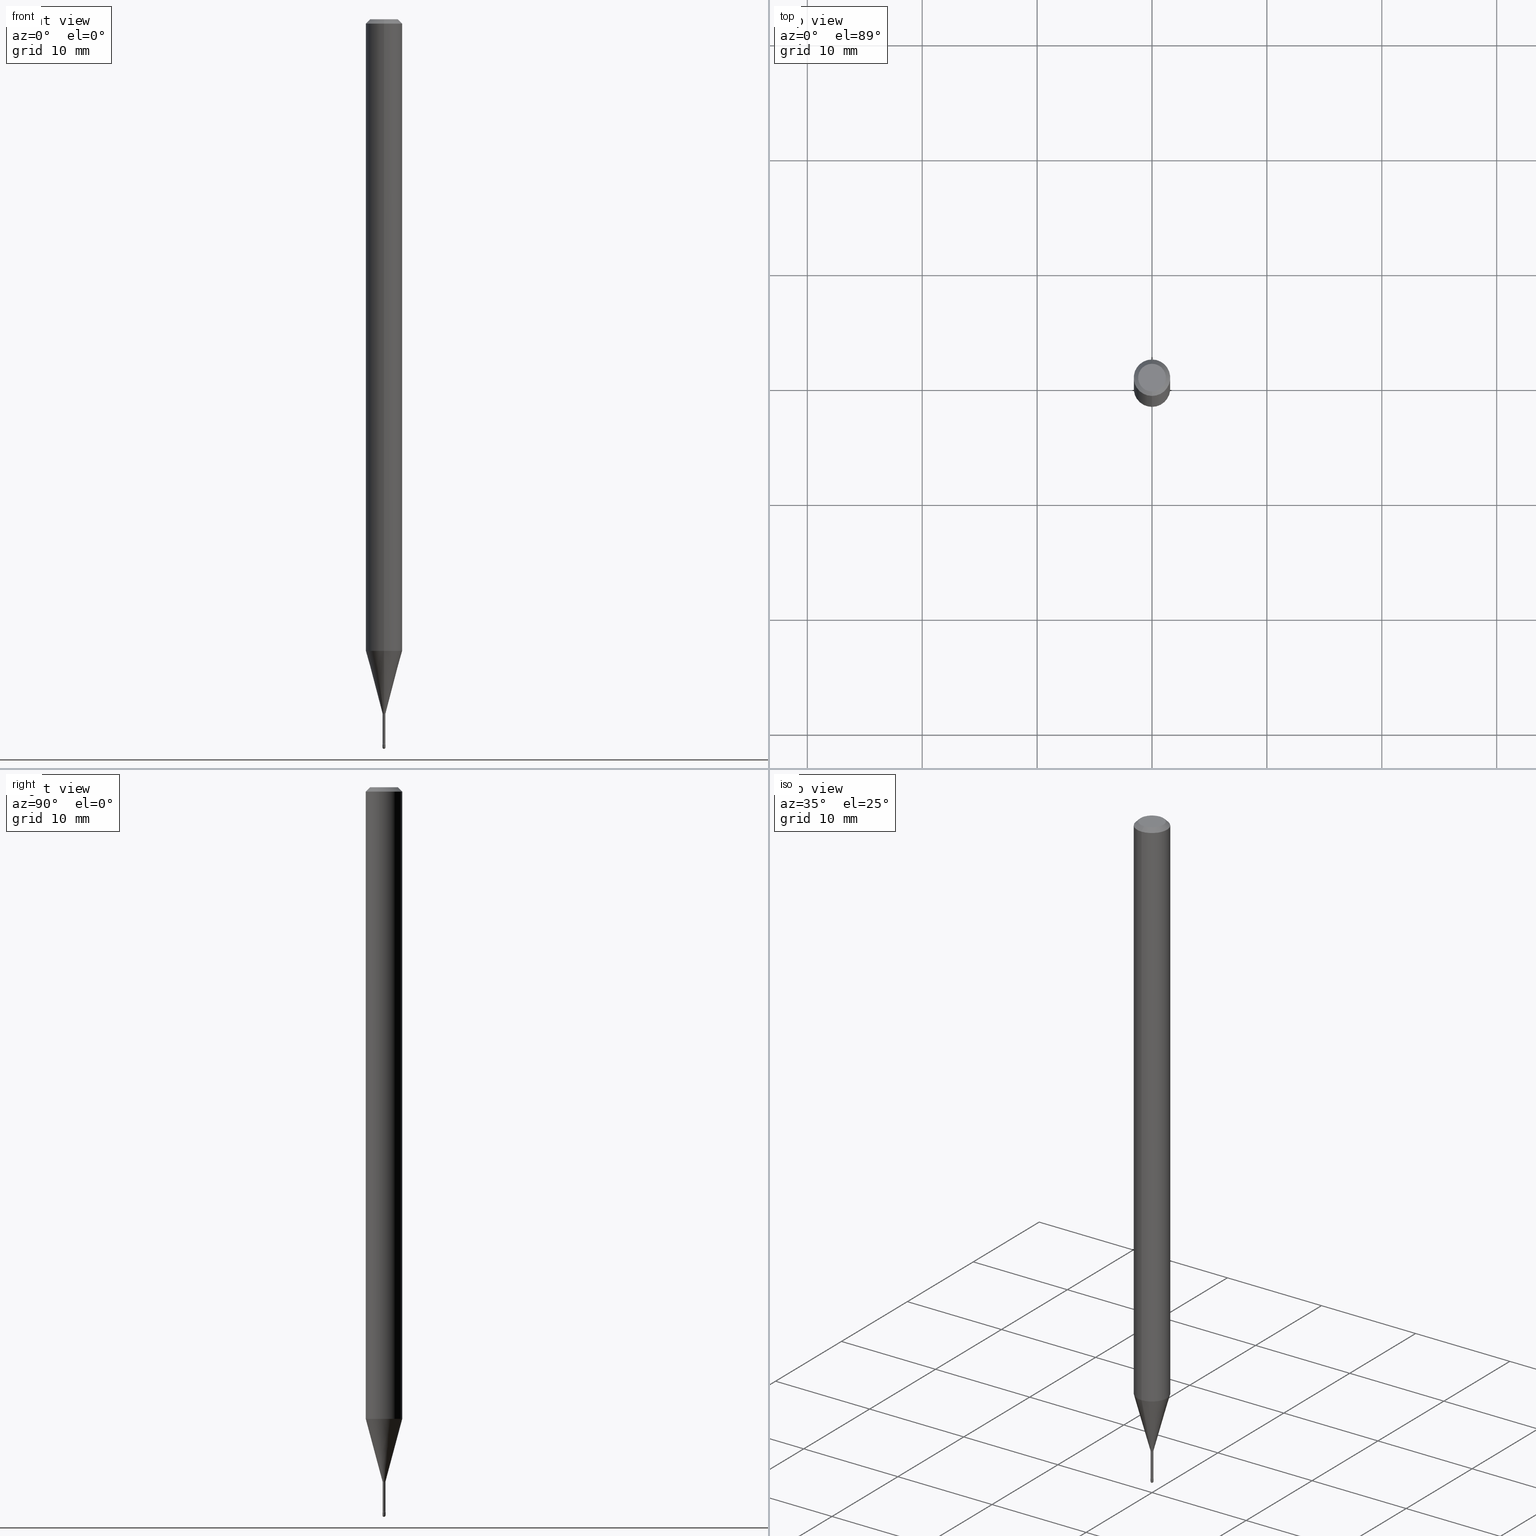
[diagram: canonical four-view strip — front | top / right | iso, engineering-drawing reading convention]
A machine part, canonical four-view strip (front | top / right | iso — engineering-drawing reading convention). The complete STEP part file that produces these views, byte-faithful:
ISO-10303-21;
HEADER;
FILE_DESCRIPTION (( 'STEP AP203' ),
    '1' );
FILE_NAME ('03886.STEP',
    '2024-04-09T20:57:31',
    ( '' ),
    ( '' ),
    'SwSTEP 2.0',
    'SolidWorks 2023',
    '' );
FILE_SCHEMA (( 'CONFIG_CONTROL_DESIGN' ));
ENDSEC;

DATA;
#1 = EDGE_CURVE ( 'NONE', #169, #232, #540, .T. ) ;
#2 = DIRECTION ( 'NONE',  ( -2.446185364487664045E-29, 3.490455186569959815E-15, 1.000000000000000000 ) ) ;
#3 = ORIENTED_EDGE ( 'NONE', *, *, #51, .F. ) ;
#4 = PERSON_AND_ORGANIZATION ( #308, #172 ) ;
#5 = FACE_OUTER_BOUND ( 'NONE', #46, .T. ) ;
#6 = AXIS2_PLACEMENT_3D ( 'NONE', #402, #186, #58 ) ;
#7 = AXIS2_PLACEMENT_3D ( 'NONE', #338, #417, #116 ) ;
#8 = DATE_AND_TIME ( #482, #228 ) ;
#9 = AXIS2_PLACEMENT_3D ( 'NONE', #190, #337, #73 ) ;
#10 = EDGE_CURVE ( 'NONE', #539, #101, #53, .T. ) ;
#11 = DIRECTION ( 'NONE',  ( -6.982962677686266711E-15, -1.000000000000000000, 3.490455186569959815E-15 ) ) ;
#12 = DIRECTION ( 'NONE',  ( -2.438088387897960049E-29, 3.491481338843145188E-15, 1.000000000000000000 ) ) ;
#13 = SECURITY_CLASSIFICATION ( '', '', #565 ) ;
#14 = AXIS2_PLACEMENT_3D ( 'NONE', #100, #359, #220 ) ;
#15 = CIRCLE ( 'NONE', #564, 0.004999999999999995767 ) ;
#16 = ADVANCED_FACE ( 'NONE', ( #369 ), #123, .F. ) ;
#17 = DIRECTION ( 'NONE',  ( -2.446185364487664325E-29, 3.490455186569959815E-15, 1.000000000000000000 ) ) ;
#18 = ORIENTED_EDGE ( 'NONE', *, *, #304, .T. ) ;
#19 = AXIS2_PLACEMENT_3D ( 'NONE', #484, #56, #142 ) ;
#20 = DIRECTION ( 'NONE',  ( 1.000000000000000000, -6.982962677686265922E-15, 4.883557194083112340E-29 ) ) ;
#21 = ORIENTED_EDGE ( 'NONE', *, *, #310, .F. ) ;
#22 = CARTESIAN_POINT ( 'NONE',  ( -1.169113584055446105E-44, 1.669184350826100908E-30, 4.780733988912460139E-16 ) ) ;
#23 = AXIS2_PLACEMENT_3D ( 'NONE', #273, #12, #277 ) ;
#24 = PRODUCT_RELATED_PRODUCT_CATEGORY ( 'detail', '', ( #421 ) ) ;
#25 = DIRECTION ( 'NONE',  ( -2.446185364487664325E-29, 3.490455186569959815E-15, 1.000000000000000000 ) ) ;
#26 = LINE ( 'NONE', #195, #238 ) ;
#27 = EDGE_CURVE ( 'NONE', #343, #169, #549, .T. ) ;
#28 = CIRCLE ( 'NONE', #300, 0.004700000000000001052 ) ;
#29 = ORIENTED_EDGE ( 'NONE', *, *, #504, .T. ) ;
#30 = DIRECTION ( 'NONE',  ( -2.446185364487664325E-29, 3.490455186569959815E-15, 1.000000000000000000 ) ) ;
#31 = DIRECTION ( 'NONE',  ( -6.982962677686265133E-15, -1.000000000000000000, 0.000000000000000000 ) ) ;
#32 = ORIENTED_EDGE ( 'NONE', *, *, #27, .F. ) ;
#33 = CARTESIAN_POINT ( 'NONE',  ( 3.702718207188244706E-17, 0.005211112605655679637, -2.378092501787273605 ) ) ;
#34 = CARTESIAN_POINT ( 'NONE',  ( -0.004999999999999997502, -8.658261396931429042E-15, -2.484999999999999876 ) ) ;
#35 = ORIENTED_EDGE ( 'NONE', *, *, #111, .F. ) ;
#36 = PERSON_AND_ORGANIZATION_ROLE ( 'creator' ) ;
#37 = FACE_OUTER_BOUND ( 'NONE', #78, .T. ) ;
#38 = AXIS2_PLACEMENT_3D ( 'NONE', #294, #167, #467 ) ;
#39 = AXIS2_PLACEMENT_3D ( 'NONE', #286, #243, #425 ) ;
#40 = CIRCLE ( 'NONE', #173, 0.005211112605663980289 ) ;
#41 = VERTEX_POINT ( 'NONE', #507 ) ;
#42 =( NAMED_UNIT ( * ) PLANE_ANGLE_UNIT ( ) SI_UNIT ( $, .RADIAN. ) );
#43 = VERTEX_POINT ( 'NONE', #332 ) ;
#44 = ORIENTED_EDGE ( 'NONE', *, *, #445, .T. ) ;
#45 = PERSON_AND_ORGANIZATION ( #308, #172 ) ;
#46 = EDGE_LOOP ( 'NONE', ( #87, #35, #212, #409 ) ) ;
#47 = ADVANCED_FACE ( 'NONE', ( #496 ), #441, .T. ) ;
#48 = DIRECTION ( 'NONE',  ( -6.982962677686265922E-15, -1.000000000000000000, 4.370956789862821150E-15 ) ) ;
#49 = DIRECTION ( 'NONE',  ( -6.982962677686265133E-15, -1.000000000000000000, 3.490455186569960210E-15 ) ) ;
#50 = DIRECTION ( 'NONE',  ( -2.446185364487664325E-29, 3.490455186569959815E-15, 1.000000000000000000 ) ) ;
#51 = EDGE_CURVE ( 'NONE', #104, #475, #148, .T. ) ;
#52 = LOCAL_TIME ( 16, 57, 31.00000000000000000, #88 ) ;
#53 = CIRCLE ( 'NONE', #39, 0.004999999999999997502 ) ;
#54 = AXIS2_PLACEMENT_3D ( 'NONE', #225, #399, #242 ) ;
#55 = LINE ( 'NONE', #60, #414 ) ;
#56 = DIRECTION ( 'NONE',  ( -2.445468806185136597E-29, 3.491481338843145583E-15, 1.000000000000000000 ) ) ;
#57 = DIRECTION ( 'NONE',  ( -2.446185364487664325E-29, 3.490455186569959815E-15, 1.000000000000000000 ) ) ;
#58 = DIRECTION ( 'NONE',  ( -6.982962677686265922E-15, -1.000000000000000000, 3.490455186569963760E-15 ) ) ;
#59 = LOCAL_TIME ( 16, 57, 31.00000000000000000, #94 ) ;
#60 = CARTESIAN_POINT ( 'NONE',  ( 0.004999999999999997502, -3.491481338843131630E-17, 2.438088387897967108E-31 ) ) ;
#61 = AXIS2_PLACEMENT_3D ( 'NONE', #512, #198, #156 ) ;
#62 = ORIENTED_EDGE ( 'NONE', *, *, #289, .F. ) ;
#63 = CARTESIAN_POINT ( 'NONE',  ( 6.101444671431915719E-29, -8.711245940413648329E-15, -2.495000000000000107 ) ) ;
#64 = ORIENTED_EDGE ( 'NONE', *, *, #244, .T. ) ;
#65 = ORIENTED_EDGE ( 'NONE', *, *, #310, .T. ) ;
#66 = ORIENTED_EDGE ( 'NONE', *, *, #10, .T. ) ;
#67 = CC_DESIGN_PERSON_AND_ORGANIZATION_ASSIGNMENT ( #415, #36, ( #250 ) ) ;
#68 = EDGE_CURVE ( 'NONE', #434, #117, #26, .T. ) ;
#69 = CARTESIAN_POINT ( 'NONE',  ( 5.817255073269882927E-29, -8.300625307006519978E-15, -2.378092501787273605 ) ) ;
#70 = FACE_OUTER_BOUND ( 'NONE', #147, .T. ) ;
#71 = EDGE_CURVE ( 'NONE', #475, #539, #323, .T. ) ;
#72 = CALENDAR_DATE ( 2024, 9, 4 ) ;
#73 = DIRECTION ( 'NONE',  ( -6.982962677686265133E-15, -1.000000000000000000, 0.000000000000000000 ) ) ;
#74 = AXIS2_PLACEMENT_3D ( 'NONE', #462, #537, #77 ) ;
#75 = DIRECTION ( 'NONE',  ( -6.982962677686265922E-15, -1.000000000000000000, 0.000000000000000000 ) ) ;
#76 = DIRECTION ( 'NONE',  ( 2.446185364487664325E-29, -3.490455186569959815E-15, -1.000000000000000000 ) ) ;
#77 = DIRECTION ( 'NONE',  ( -6.982962677686265922E-15, -1.000000000000000000, 0.000000000000000000 ) ) ;
#78 = EDGE_LOOP ( 'NONE', ( #493, #89 ) ) ;
#79 =( LENGTH_UNIT ( ) NAMED_UNIT ( * ) SI_UNIT ( $, .METRE. ) );
#80 = EDGE_CURVE ( 'NONE', #345, #169, #479, .T. ) ;
#81 = DIRECTION ( 'NONE',  ( -2.446185364487664325E-29, 3.490455186569959815E-15, 1.000000000000000000 ) ) ;
#82 = ORIENTED_EDGE ( 'NONE', *, *, #91, .T. ) ;
#83 = LINE ( 'NONE', #33, #562 ) ;
#84 = AXIS2_PLACEMENT_3D ( 'NONE', #544, #153, #122 ) ;
#85 = ORIENTED_EDGE ( 'NONE', *, *, #127, .T. ) ;
#86 = AXIS2_PLACEMENT_3D ( 'NONE', #131, #214, #527 ) ;
#87 = ORIENTED_EDGE ( 'NONE', *, *, #304, .F. ) ;
#88 = COORDINATED_UNIVERSAL_TIME_OFFSET ( 5, 0, .BEHIND. ) ;
#89 = ORIENTED_EDGE ( 'NONE', *, *, #364, .F. ) ;
#90 = PERSON_AND_ORGANIZATION_ROLE ( 'design_supplier' ) ;
#91 = EDGE_CURVE ( 'NONE', #464, #274, #218, .T. ) ;
#92 = AXIS2_PLACEMENT_3D ( 'NONE', #439, #483, #49 ) ;
#93 = DIRECTION ( 'NONE',  ( -2.446185364487664325E-29, 3.490455186569959815E-15, 1.000000000000000000 ) ) ;
#94 = COORDINATED_UNIVERSAL_TIME_OFFSET ( 5, 0, .BEHIND. ) ;
#95 = DIRECTION ( 'NONE',  ( -6.982962677686265133E-15, -1.000000000000000000, 0.000000000000000000 ) ) ;
#96 = EDGE_CURVE ( 'NONE', #203, #345, #383, .T. ) ;
#97 = DIRECTION ( 'NONE',  ( -6.982962677686266711E-15, -1.000000000000000000, 3.490455186569959815E-15 ) ) ;
#98 =( GEOMETRIC_REPRESENTATION_CONTEXT ( 3 ) GLOBAL_UNCERTAINTY_ASSIGNED_CONTEXT ( ( #107 ) ) GLOBAL_UNIT_ASSIGNED_CONTEXT ( ( #298, #42, #547 ) ) REPRESENTATION_CONTEXT ( 'NONE', 'WORKASPACE' ) );
#99 = DIRECTION ( 'NONE',  ( 6.982962677686265922E-15, 1.000000000000000000, 0.000000000000000000 ) ) ;
#100 = CARTESIAN_POINT ( 'NONE',  ( 3.669278046731516912E-31, -5.235682779854968492E-17, -0.01500000000000008271 ) ) ;
#101 = VERTEX_POINT ( 'NONE', #446 ) ;
#102 = DESIGN_CONTEXT ( 'detailed design', #185, 'design' ) ;
#103 = CIRCLE ( 'NONE', #523, 0.01500000000000000638 ) ;
#104 = VERTEX_POINT ( 'NONE', #264 ) ;
#105 = CARTESIAN_POINT ( 'NONE',  ( 6.101444671431915719E-29, -8.711245940413648329E-15, -2.495000000000000107 ) ) ;
#106 = DIRECTION ( 'NONE',  ( -6.982962677686265922E-15, -1.000000000000000000, 3.490455186569963760E-15 ) ) ;
#107 = UNCERTAINTY_MEASURE_WITH_UNIT (LENGTH_MEASURE( 1.000000000000000082E-05 ), #298, 'distance_accuracy_value', 'NONE');
#108 = CYLINDRICAL_SURFACE ( 'NONE', #397, 0.004700000000000003654 ) ;
#109 = CARTESIAN_POINT ( 'NONE',  ( -3.638900483451383026E-17, -0.005211112605672280074, -2.378092501787273605 ) ) ;
#110 = CARTESIAN_POINT ( 'NONE',  ( 5.826751863672590158E-29, -8.314176251181938091E-15, -2.381974787463811527 ) ) ;
#111 = EDGE_CURVE ( 'NONE', #283, #343, #313, .T. ) ;
#112 = ORIENTED_EDGE ( 'NONE', *, *, #199, .T. ) ;
#113 = FACE_OUTER_BOUND ( 'NONE', #431, .T. ) ;
#114 = PERSON_AND_ORGANIZATION ( #308, #172 ) ;
#115 = CC_DESIGN_DATE_AND_TIME_ASSIGNMENT ( #8, #175, ( #13 ) ) ;
#116 = DIRECTION ( 'NONE',  ( -6.982962677686266711E-15, -1.000000000000000000, 3.490455186569959815E-15 ) ) ;
#117 = VERTEX_POINT ( 'NONE', #261 ) ;
#118 = VERTEX_POINT ( 'NONE', #449 ) ;
#119 = COORDINATED_UNIVERSAL_TIME_OFFSET ( 5, 0, .BEHIND. ) ;
#120 = ORIENTED_EDGE ( 'NONE', *, *, #68, .F. ) ;
#121 = ORIENTED_EDGE ( 'NONE', *, *, #400, .T. ) ;
#122 = DIRECTION ( 'NONE',  ( 1.000000000000000000, -6.982962677686142071E-15, 0.000000000000000000 ) ) ;
#123 = TOROIDAL_SURFACE ( 'NONE', #7, 0.01970000000000000917, 0.01500000000000000638 ) ;
#124 = ORIENTED_EDGE ( 'NONE', *, *, #1, .T. ) ;
#125 = AXIS2_PLACEMENT_3D ( 'NONE', #505, #17, #187 ) ;
#126 = DIRECTION ( 'NONE',  ( -2.445468806185136597E-29, 3.491481338843145583E-15, 1.000000000000000000 ) ) ;
#127 = EDGE_CURVE ( 'NONE', #434, #293, #217, .T. ) ;
#128 = PRODUCT_DEFINITION ( 'UNKNOWN', '', #250, #102 ) ;
#129 = FACE_OUTER_BOUND ( 'NONE', #459, .T. ) ;
#130 = LOCAL_TIME ( 16, 57, 31.00000000000000000, #119 ) ;
#131 = CARTESIAN_POINT ( 'NONE',  ( 6.072671037490854444E-29, -8.661640674327993008E-15, -2.482015037688680259 ) ) ;
#132 = DIMENSIONAL_EXPONENTS ( 1.000000000000000000, 0.000000000000000000, 0.000000000000000000, 0.000000000000000000, 0.000000000000000000, 0.000000000000000000, 0.000000000000000000 ) ;
#133 = TOROIDAL_SURFACE ( 'NONE', #324, 0.01970000000000000223, 0.01500000000000002720 ) ;
#134 = FACE_OUTER_BOUND ( 'NONE', #143, .T. ) ;
#135 = CARTESIAN_POINT ( 'NONE',  ( 3.669278046731516912E-31, -5.235682779854968492E-17, -0.01500000000000008271 ) ) ;
#136 = CIRCLE ( 'NONE', #226, 0.06250000000000000000 ) ;
#137 = EDGE_LOOP ( 'NONE', ( #32, #188, #290, #456 ) ) ;
#138 = DIRECTION ( 'NONE',  ( 1.000000000000000000, -6.982962677686336130E-15, 0.000000000000000000 ) ) ;
#139 = CC_DESIGN_PERSON_AND_ORGANIZATION_ASSIGNMENT ( #114, #506, ( #128 ) ) ;
#140 = ADVANCED_FACE ( 'NONE', ( #141 ), #363, .T. ) ;
#141 = FACE_OUTER_BOUND ( 'NONE', #280, .T. ) ;
#142 = DIRECTION ( 'NONE',  ( 1.000000000000000000, -6.982962677686266711E-15, 4.876176775795936914E-29 ) ) ;
#143 = EDGE_LOOP ( 'NONE', ( #201, #85 ) ) ;
#144 = DIRECTION ( 'NONE',  ( -1.000000000000000000, 6.982962677686265922E-15, -4.883557194083112340E-29 ) ) ;
#145 = AXIS2_PLACEMENT_3D ( 'NONE', #566, #174, #478 ) ;
#146 = CARTESIAN_POINT ( 'NONE',  ( 6.101444671431915719E-29, -8.711245940413648329E-15, -2.495000000000000107 ) ) ;
#147 = EDGE_LOOP ( 'NONE', ( #3, #210, #288, #335 ) ) ;
#148 = CIRCLE ( 'NONE', #355, 0.005000000000000040870 ) ;
#149 = APPROVAL ( #341, 'UNSPECIFIED' ) ;
#150 = CIRCLE ( 'NONE', #490, 0.004999999999999995767 ) ;
#151 = CARTESIAN_POINT ( 'NONE',  ( 4.364351673553919652E-16, 0.06249999999999995143, -0.01500000000000030129 ) ) ;
#152 = ORIENTED_EDGE ( 'NONE', *, *, #400, .F. ) ;
#153 = DIRECTION ( 'NONE',  ( -2.445468806185136597E-29, 3.491481338843145583E-15, 1.000000000000000000 ) ) ;
#154 = PRODUCT_DEFINITION_SHAPE ( 'NONE', 'NONE',  #128 ) ;
#155 = MECHANICAL_CONTEXT ( 'NONE', #407, 'mechanical' ) ;
#156 = DIRECTION ( 'NONE',  ( -6.982962677686265922E-15, -1.000000000000000000, 0.000000000000000000 ) ) ;
#157 = CARTESIAN_POINT ( 'NONE',  ( 3.339550858072472854E-17, 0.004700000000000003654, 4.616682595143672511E-16 ) ) ;
#158 = ORIENTED_EDGE ( 'NONE', *, *, #381, .F. ) ;
#159 = DIRECTION ( 'NONE',  ( 0.000000000000000000, 0.000000000000000000, 1.000000000000000000 ) ) ;
#160 = CLOSED_SHELL ( 'NONE', ( #252, #403, #488, #140, #473 ) ) ;
#161 = VECTOR ( 'NONE', #292, 39.37007874015748143 ) ;
#162 = DIRECTION ( 'NONE',  ( -2.446185364487664325E-29, 3.490455186569959815E-15, 1.000000000000000000 ) ) ;
#163 = ORIENTED_EDGE ( 'NONE', *, *, #111, .T. ) ;
#164 = CARTESIAN_POINT ( 'NONE',  ( 3.669278046731516912E-31, -5.235682779854968492E-17, -0.01500000000000008271 ) ) ;
#165 = ORIENTED_EDGE ( 'NONE', *, *, #127, .F. ) ;
#166 = ORIENTED_EDGE ( 'NONE', *, *, #189, .F. ) ;
#167 = DIRECTION ( 'NONE',  ( -2.445468806185136597E-29, 3.491481338843145583E-15, 1.000000000000000000 ) ) ;
#168 = ADVANCED_FACE ( 'NONE', ( #270 ), #258, .T. ) ;
#169 = VERTEX_POINT ( 'NONE', #179 ) ;
#170 = ADVANCED_FACE ( 'NONE', ( #307 ), #508, .F. ) ;
#171 = DIRECTION ( 'NONE',  ( 7.105427357601001859E-15, 1.000000000000000000, 0.000000000000000000 ) ) ;
#172 = ORGANIZATION ( 'UNSPECIFIED', 'UNSPECIFIED', '' ) ;
#173 = AXIS2_PLACEMENT_3D ( 'NONE', #69, #239, #287 ) ;
#174 = DIRECTION ( 'NONE',  ( -2.446185364487664325E-29, 3.490455186569959815E-15, 1.000000000000000000 ) ) ;
#175 = DATE_TIME_ROLE ( 'classification_date' ) ;
#176 = CARTESIAN_POINT ( 'NONE',  ( 5.817255073269882927E-29, -8.300625307006519978E-15, -2.378092501787273605 ) ) ;
#177 = FACE_OUTER_BOUND ( 'NONE', #231, .T. ) ;
#178 = PERSON_AND_ORGANIZATION ( #308, #172 ) ;
#179 = CARTESIAN_POINT ( 'NONE',  ( 3.339550858078545234E-17, 0.004699999999991687390, -2.381974787463811527 ) ) ;
#180 = AXIS2_PLACEMENT_3D ( 'NONE', #135, #309, #440 ) ;
#181 = ADVANCED_FACE ( 'NONE', ( #134 ), #222, .F. ) ;
#182 = CARTESIAN_POINT ( 'NONE',  ( -4.364351673553916201E-16, -0.06250000000000000000, 6.962268480518685024E-16 ) ) ;
#183 = AXIS2_PLACEMENT_3D ( 'NONE', #398, #57, #11 ) ;
#184 = VECTOR ( 'NONE', #2, 39.37007874015748143 ) ;
#185 = APPLICATION_CONTEXT ( 'configuration controlled 3d designs of mechanical parts and assemblies' ) ;
#186 = DIRECTION ( 'NONE',  ( -2.446185364487664325E-29, 3.490455186569959815E-15, 1.000000000000000000 ) ) ;
#187 = DIRECTION ( 'NONE',  ( -6.982962677686265922E-15, -1.000000000000000000, 4.370956789862821150E-15 ) ) ;
#188 = ORIENTED_EDGE ( 'NONE', *, *, #315, .T. ) ;
#189 = EDGE_CURVE ( 'NONE', #117, #274, #404, .T. ) ;
#190 = CARTESIAN_POINT ( 'NONE',  ( -1.375643647503587926E-16, -0.01970000000000867238, -2.482015037688680259 ) ) ;
#191 = ORIENTED_EDGE ( 'NONE', *, *, #27, .T. ) ;
#192 = CARTESIAN_POINT ( 'NONE',  ( -3.281992458506719177E-17, -0.004700000000008315582, -2.381974787463811527 ) ) ;
#193 = AXIS2_PLACEMENT_3D ( 'NONE', #22, #30, #230 ) ;
#194 = MANIFOLD_SOLID_BREP ( 'Body-Move/Copy2[2]', #525 ) ;
#195 = CARTESIAN_POINT ( 'NONE',  ( -4.287811248607203282E-16, -0.06250000000000005551, -0.01499999999999986587 ) ) ;
#196 = ORIENTED_EDGE ( 'NONE', *, *, #530, .T. ) ;
#197 = CARTESIAN_POINT ( 'NONE',  ( 3.552713678806574616E-17, 0.004999999999991322150, -2.484999999999999876 ) ) ;
#198 = DIRECTION ( 'NONE',  ( -2.446185364487664325E-29, 3.490455186569959815E-15, 1.000000000000000000 ) ) ;
#199 = EDGE_CURVE ( 'NONE', #43, #118, #55, .T. ) ;
#200 = MANIFOLD_SOLID_BREP ( 'Body-Move/Copy2[1]', #160 ) ;
#201 = ORIENTED_EDGE ( 'NONE', *, *, #284, .T. ) ;
#202 = DIRECTION ( 'NONE',  ( -2.445468806185136877E-29, 3.491481338843145188E-15, 1.000000000000000000 ) ) ;
#203 = VERTEX_POINT ( 'NONE', #373 ) ;
#204 = ORIENTED_EDGE ( 'NONE', *, *, #381, .T. ) ;
#205 = DIRECTION ( 'NONE',  ( 6.982962677686265922E-15, 1.000000000000000000, -3.483106191921935554E-15 ) ) ;
#206 = TOROIDAL_SURFACE ( 'NONE', #86, 0.01970000000000000917, 0.01500000000000000638 ) ;
#207 = DIRECTION ( 'NONE',  ( -2.446185364487664045E-29, 3.490455186569959815E-15, 1.000000000000000000 ) ) ;
#208 = ORIENTED_EDGE ( 'NONE', *, *, #435, .T. ) ;
#209 = PERSON_AND_ORGANIZATION ( #308, #172 ) ;
#210 = ORIENTED_EDGE ( 'NONE', *, *, #211, .T. ) ;
#211 = EDGE_CURVE ( 'NONE', #104, #101, #259, .T. ) ;
#212 = ORIENTED_EDGE ( 'NONE', *, *, #358, .T. ) ;
#213 = ORIENTED_EDGE ( 'NONE', *, *, #80, .F. ) ;
#214 = DIRECTION ( 'NONE',  ( -2.446185364487664325E-29, 3.490455186569959815E-15, 1.000000000000000000 ) ) ;
#215 = EDGE_CURVE ( 'NONE', #345, #203, #40, .T. ) ;
#216 = CARTESIAN_POINT ( 'NONE',  ( 1.399769189447980049E-16, 0.01969999999999168944, -2.381974787463811527 ) ) ;
#217 = CIRCLE ( 'NONE', #183, 0.04749999999999999362 ) ;
#218 = LINE ( 'NONE', #393, #184 ) ;
#219 = EDGE_CURVE ( 'NONE', #203, #232, #498, .T. ) ;
#220 = DIRECTION ( 'NONE',  ( 6.982962677686265922E-15, 1.000000000000000000, -3.483106191921935554E-15 ) ) ;
#221 = DIRECTION ( 'NONE',  ( -2.446185364487664325E-29, 3.490455186569959815E-15, 1.000000000000000000 ) ) ;
#222 = PLANE ( 'NONE',  #333 ) ;
#223 = AXIS2_PLACEMENT_3D ( 'NONE', #536, #319, #494 ) ;
#224 = ADVANCED_FACE ( 'NONE', ( #113 ), #329, .T. ) ;
#225 = CARTESIAN_POINT ( 'NONE',  ( 6.101444671431917961E-29, -8.711245940413649907E-15, -2.495000000000000551 ) ) ;
#226 = AXIS2_PLACEMENT_3D ( 'NONE', #303, #93, #48 ) ;
#227 = CYLINDRICAL_SURFACE ( 'NONE', #6, 0.004700000000000003654 ) ;
#228 = LOCAL_TIME ( 16, 57, 31.00000000000000000, #437 ) ;
#229 = CIRCLE ( 'NONE', #125, 0.06250000000000000000 ) ;
#230 = DIRECTION ( 'NONE',  ( -6.982962677686265922E-15, -1.000000000000000000, 3.490455186569959421E-15 ) ) ;
#231 = EDGE_LOOP ( 'NONE', ( #158, #66, #342, #112, #62 ) ) ;
#232 = VERTEX_POINT ( 'NONE', #192 ) ;
#233 = EDGE_CURVE ( 'NONE', #41, #464, #229, .T. ) ;
#234 = EDGE_LOOP ( 'NONE', ( #406, #388, #208, #340 ) ) ;
#235 = CIRCLE ( 'NONE', #317, 0.004999999999999997502 ) ;
#236 = DIRECTION ( 'NONE',  ( 6.982962677686265133E-15, 1.000000000000000000, 0.000000000000000000 ) ) ;
#237 = AXIS2_PLACEMENT_3D ( 'NONE', #387, #159, #336 ) ;
#238 = VECTOR ( 'NONE', #371, 39.37007874015748143 ) ;
#239 = DIRECTION ( 'NONE',  ( -2.446185364487664325E-29, 3.490455186569959815E-15, 1.000000000000000000 ) ) ;
#240 = CIRCLE ( 'NONE', #54, 0.004999999999999997502 ) ;
#241 = DATE_AND_TIME ( #72, #130 ) ;
#242 = DIRECTION ( 'NONE',  ( 1.000000000000000000, -6.982962677686142071E-15, 0.000000000000000000 ) ) ;
#243 = DIRECTION ( 'NONE',  ( -2.445468806185136597E-29, 3.491481338843145583E-15, 1.000000000000000000 ) ) ;
#244 = EDGE_CURVE ( 'NONE', #232, #169, #28, .T. ) ;
#245 = FACE_OUTER_BOUND ( 'NONE', #517, .T. ) ;
#246 = FACE_OUTER_BOUND ( 'NONE', #471, .T. ) ;
#247 = ORIENTED_EDGE ( 'NONE', *, *, #96, .T. ) ;
#248 = APPROVAL_DATE_TIME ( #241, #350 ) ;
#249 = ORIENTED_EDGE ( 'NONE', *, *, #219, .T. ) ;
#250 = PRODUCT_DEFINITION_FORMATION_WITH_SPECIFIED_SOURCE ( 'ANY', '', #421, .NOT_KNOWN. ) ;
#251 = AXIS2_PLACEMENT_3D ( 'NONE', #408, #81, #541 ) ;
#252 = ADVANCED_FACE ( 'NONE', ( #245 ), #365, .T. ) ;
#253 = ORIENTED_EDGE ( 'NONE', *, *, #312, .F. ) ;
#254 = ORIENTED_EDGE ( 'NONE', *, *, #233, .T. ) ;
#255 = DATE_AND_TIME ( #291, #52 ) ;
#256 = ORIENTED_EDGE ( 'NONE', *, *, #199, .F. ) ;
#257 = APPROVAL_DATE_TIME ( #476, #545 ) ;
#258 = CONICAL_SURFACE ( 'NONE', #14, 0.06250000000000000000, 0.7853981633974483900 ) ;
#259 = CIRCLE ( 'NONE', #481, 0.005000000000000040870 ) ;
#260 = PERSON_AND_ORGANIZATION_ROLE ( 'classification_officer' ) ;
#261 = CARTESIAN_POINT ( 'NONE',  ( -4.364351673553912750E-16, -0.06250000000000005551, -0.01499999999999986587 ) ) ;
#262 = EDGE_CURVE ( 'NONE', #376, #510, #150, .T. ) ;
#263 = CALENDAR_DATE ( 2024, 9, 4 ) ;
#264 = CARTESIAN_POINT ( 'NONE',  ( 6.113885807035136759E-29, -8.728397185408077852E-15, -2.500000000000000000 ) ) ;
#265 = AXIS2_PLACEMENT_3D ( 'NONE', #164, #76, #205 ) ;
#266 = DIRECTION ( 'NONE',  ( 1.000000000000000000, -7.105427357601001070E-15, 4.926302941801113917E-29 ) ) ;
#267 = AXIS2_PLACEMENT_3D ( 'NONE', #533, #269, #443 ) ;
#268 = CONICAL_SURFACE ( 'NONE', #61, 0.005211112605663980289, 0.2617993877991496854 ) ;
#269 = DIRECTION ( 'NONE',  ( -2.446185364487664325E-29, 3.490455186569959815E-15, 1.000000000000000000 ) ) ;
#270 = FACE_OUTER_BOUND ( 'NONE', #454, .T. ) ;
#271 = FACE_OUTER_BOUND ( 'NONE', #137, .T. ) ;
#272 = CC_DESIGN_PERSON_AND_ORGANIZATION_ASSIGNMENT ( #519, #285, ( #421 ) ) ;
#273 = CARTESIAN_POINT ( 'NONE',  ( 6.076989983370064174E-29, -8.676331127025216680E-15, -2.484999999999999876 ) ) ;
#274 = VERTEX_POINT ( 'NONE', #438 ) ;
#275 = CC_DESIGN_DATE_AND_TIME_ASSIGNMENT ( #255, #432, ( #128 ) ) ;
#276 = CIRCLE ( 'NONE', #334, 0.04749999999999999362 ) ;
#277 = DIRECTION ( 'NONE',  ( 1.000000000000000000, -6.982962677686265922E-15, 4.876176775795935793E-29 ) ) ;
#278 = DIRECTION ( 'NONE',  ( -7.105427357600999492E-15, -1.000000000000000000, 0.000000000000000000 ) ) ;
#279 = CARTESIAN_POINT ( 'NONE',  ( 2.405581959609991680E-16, 0.005211112605655679637, -2.378092501787273605 ) ) ;
#280 = EDGE_LOOP ( 'NONE', ( #520, #450, #466, #253 ) ) ;
#281 = ADVANCED_BREP_SHAPE_REPRESENTATION ( '03886', ( #200, #194, #237 ), #98 ) ;
#282 = LINE ( 'NONE', #325, #314 ) ;
#283 = VERTEX_POINT ( 'NONE', #296 ) ;
#284 = EDGE_CURVE ( 'NONE', #293, #434, #276, .T. ) ;
#285 = PERSON_AND_ORGANIZATION_ROLE ( 'design_owner' ) ;
#286 = CARTESIAN_POINT ( 'NONE',  ( 6.101444671431917961E-29, -8.711245940413649907E-15, -2.495000000000000551 ) ) ;
#287 = DIRECTION ( 'NONE',  ( -6.982962677686265922E-15, -1.000000000000000000, 0.000000000000000000 ) ) ;
#288 = ORIENTED_EDGE ( 'NONE', *, *, #10, .F. ) ;
#289 = EDGE_CURVE ( 'NONE', #318, #118, #542, .T. ) ;
#290 = ORIENTED_EDGE ( 'NONE', *, *, #352, .T. ) ;
#291 = CALENDAR_DATE ( 2024, 9, 4 ) ;
#292 = DIRECTION ( 'NONE',  ( 4.937700262164548042E-15, 0.7071067811865451302, -0.7071067811865499042 ) ) ;
#293 = VERTEX_POINT ( 'NONE', #487 ) ;
#294 = CARTESIAN_POINT ( 'NONE',  ( 6.076989983370064174E-29, -8.676331127025216680E-15, -2.484999999999999876 ) ) ;
#295 = ORIENTED_EDGE ( 'NONE', *, *, #233, .F. ) ;
#296 = CARTESIAN_POINT ( 'NONE',  ( -3.281992458506477589E-17, -0.004700000000008668598, -2.482015037688680259 ) ) ;
#297 = EDGE_LOOP ( 'NONE', ( #213, #429, #249, #64 ) ) ;
#298 =( CONVERSION_BASED_UNIT ( 'INCH', #559 ) LENGTH_UNIT ( ) NAMED_UNIT ( #132 ) );
#299 = AXIS2_PLACEMENT_3D ( 'NONE', #513, #380, #410 ) ;
#300 = AXIS2_PLACEMENT_3D ( 'NONE', #110, #461, #75 ) ;
#301 = ORIENTED_EDGE ( 'NONE', *, *, #364, .T. ) ;
#302 = CARTESIAN_POINT ( 'NONE',  ( 6.078770630751846126E-29, -8.673781138626350291E-15, -2.484999999999999876 ) ) ;
#303 = CARTESIAN_POINT ( 'NONE',  ( 5.294248317323680554E-29, -7.554348401582429406E-15, -2.164287463322519312 ) ) ;
#304 = EDGE_CURVE ( 'NONE', #343, #510, #103, .T. ) ;
#305 = LOCAL_TIME ( 16, 57, 31.00000000000000000, #344 ) ;
#306 = AXIS2_PLACEMENT_3D ( 'NONE', #424, #25, #412 ) ;
#307 = FACE_OUTER_BOUND ( 'NONE', #515, .T. ) ;
#308 = PERSON ( 'UNSPECIFIED', 'UNSPECIFIED', 'UNSPECIFIED', ('UNSPECIFIED'), ('UNSPECIFIED'), ('UNSPECIFIED') ) ;
#309 = DIRECTION ( 'NONE',  ( -2.446185364487664325E-29, 3.490455186569959815E-15, 1.000000000000000000 ) ) ;
#310 = EDGE_CURVE ( 'NONE', #41, #117, #491, .T. ) ;
#311 = CARTESIAN_POINT ( 'NONE',  ( 1.399769189448004948E-16, 0.01969999999999134943, -2.482015037688680259 ) ) ;
#312 = EDGE_CURVE ( 'NONE', #101, #43, #240, .T. ) ;
#313 = CIRCLE ( 'NONE', #267, 0.004700000000000005389 ) ;
#314 = VECTOR ( 'NONE', #548, 39.37007874015748143 ) ;
#315 = EDGE_CURVE ( 'NONE', #343, #283, #427, .T. ) ;
#316 = PLANE ( 'NONE',  #23 ) ;
#317 = AXIS2_PLACEMENT_3D ( 'NONE', #561, #126, #392 ) ;
#318 = VERTEX_POINT ( 'NONE', #34 ) ;
#319 = DIRECTION ( 'NONE',  ( -2.445468806185136597E-29, 3.491481338843145583E-15, 1.000000000000000000 ) ) ;
#320 = DIRECTION ( 'NONE',  ( -1.000000000000000000, 6.982962677686265922E-15, -4.883557194083113462E-29 ) ) ;
#321 = ORIENTED_EDGE ( 'NONE', *, *, #352, .F. ) ;
#322 = CC_DESIGN_APPROVAL ( #545, ( #13 ) ) ;
#323 = CIRCLE ( 'NONE', #84, 0.004999999999999997502 ) ;
#324 = AXIS2_PLACEMENT_3D ( 'NONE', #550, #162, #426 ) ;
#325 = CARTESIAN_POINT ( 'NONE',  ( -0.004999999999999997502, 3.552713678800499154E-17, -2.459467545127451822E-31 ) ) ;
#326 = ADVANCED_FACE ( 'NONE', ( #246 ), #108, .T. ) ;
#327 = DIRECTION ( 'NONE',  ( -1.000000000000000000, 7.105427357601001070E-15, -4.926315508542082329E-29 ) ) ;
#328 = CARTESIAN_POINT ( 'NONE',  ( 3.446132268442560849E-17, 0.004699999999991342180, -2.482015037688680259 ) ) ;
#329 = CYLINDRICAL_SURFACE ( 'NONE', #193, 0.06250000000000000000 ) ;
#330 = APPLICATION_PROTOCOL_DEFINITION ( 'international standard', 'config_control_design', 1994, #185 ) ;
#331 = SPHERICAL_SURFACE ( 'NONE', #384, 0.005000000000000040870 ) ;
#332 = CARTESIAN_POINT ( 'NONE',  ( 0.004999999999999997502, -8.728703347107864943E-15, -2.495000000000000551 ) ) ;
#333 = AXIS2_PLACEMENT_3D ( 'NONE', #486, #528, #396 ) ;
#334 = AXIS2_PLACEMENT_3D ( 'NONE', #346, #50, #97 ) ;
#335 = ORIENTED_EDGE ( 'NONE', *, *, #71, .F. ) ;
#336 = DIRECTION ( 'NONE',  ( 1.000000000000000000, 0.000000000000000000, 0.000000000000000000 ) ) ;
#337 = DIRECTION ( 'NONE',  ( -1.000000000000000000, 6.982962677686265922E-15, -4.883557194083112340E-29 ) ) ;
#338 = CARTESIAN_POINT ( 'NONE',  ( 6.072671037490854444E-29, -8.661640674327993008E-15, -2.482015037688680259 ) ) ;
#339 = ADVANCED_FACE ( 'NONE', ( #37 ), #499, .F. ) ;
#340 = ORIENTED_EDGE ( 'NONE', *, *, #463, .F. ) ;
#341 = APPROVAL_STATUS ( 'not_yet_approved' ) ;
#342 = ORIENTED_EDGE ( 'NONE', *, *, #312, .T. ) ;
#343 = VERTEX_POINT ( 'NONE', #328 ) ;
#344 = COORDINATED_UNIVERSAL_TIME_OFFSET ( 5, 0, .BEHIND. ) ;
#345 = VERTEX_POINT ( 'NONE', #279 ) ;
#346 = CARTESIAN_POINT ( 'NONE',  ( 2.028763788083380773E-45, -2.885043637422717715E-31, -8.279577430452170583E-17 ) ) ;
#347 = CC_DESIGN_APPROVAL ( #350, ( #250 ) ) ;
#348 = AXIS2_PLACEMENT_3D ( 'NONE', #492, #354, #99 ) ;
#349 = CIRCLE ( 'NONE', #306, 0.06250000000000000000 ) ;
#350 = APPROVAL ( #465, 'UNSPECIFIED' ) ;
#351 = APPROVAL_STATUS ( 'not_yet_approved' ) ;
#352 = EDGE_CURVE ( 'NONE', #283, #232, #502, .T. ) ;
#353 = DIRECTION ( 'NONE',  ( -2.446185364487664325E-29, 3.490455186569959815E-15, 1.000000000000000000 ) ) ;
#354 = DIRECTION ( 'NONE',  ( -1.000000000000000000, 6.982962677686265922E-15, -4.883557194083113462E-29 ) ) ;
#355 = AXIS2_PLACEMENT_3D ( 'NONE', #63, #20, #236 ) ;
#356 = AXIS2_PLACEMENT_3D ( 'NONE', #419, #144, #377 ) ;
#357 = SHAPE_DEFINITION_REPRESENTATION ( #154, #281 ) ;
#358 = EDGE_CURVE ( 'NONE', #283, #376, #405, .T. ) ;
#359 = DIRECTION ( 'NONE',  ( 2.446185364487664325E-29, -3.490455186569959815E-15, -1.000000000000000000 ) ) ;
#360 = CC_DESIGN_PERSON_AND_ORGANIZATION_ASSIGNMENT ( #395, #260, ( #13 ) ) ;
#361 = CARTESIAN_POINT ( 'NONE',  ( 6.076989983370064174E-29, -8.676331127025216680E-15, -2.484999999999999876 ) ) ;
#362 = DIRECTION ( 'NONE',  ( -2.446185364487664045E-29, 3.490455186569959815E-15, 1.000000000000000000 ) ) ;
#363 = SPHERICAL_SURFACE ( 'NONE', #348, 0.005000000000000040870 ) ;
#364 = EDGE_CURVE ( 'NONE', #510, #376, #15, .T. ) ;
#365 = CYLINDRICAL_SURFACE ( 'NONE', #223, 0.004999999999999997502 ) ;
#366 = DIRECTION ( 'NONE',  ( -2.446185364487664325E-29, 3.490455186569959815E-15, 1.000000000000000000 ) ) ;
#367 = EDGE_LOOP ( 'NONE', ( #247, #196, #295, #428 ) ) ;
#368 = CARTESIAN_POINT ( 'NONE',  ( -3.491481338837051238E-17, -0.005000000000008668517, -2.484999999999999876 ) ) ;
#369 = FACE_OUTER_BOUND ( 'NONE', #560, .T. ) ;
#370 = VECTOR ( 'NONE', #207, 39.37007874015748143 ) ;
#371 = DIRECTION ( 'NONE',  ( -4.851104656540964275E-15, -0.7071067811865500152, -0.7071067811865450192 ) ) ;
#372 = ORIENTED_EDGE ( 'NONE', *, *, #219, .F. ) ;
#373 = CARTESIAN_POINT ( 'NONE',  ( -3.638900483451383026E-17, -0.005211112605672280074, -2.378092501787273605 ) ) ;
#374 = APPLICATION_PROTOCOL_DEFINITION ( 'international standard', 'config_control_design', 1994, #407 ) ;
#375 = FACE_OUTER_BOUND ( 'NONE', #367, .T. ) ;
#376 = VERTEX_POINT ( 'NONE', #368 ) ;
#377 = DIRECTION ( 'NONE',  ( -6.982962677686267499E-15, -1.000000000000000000, 0.000000000000000000 ) ) ;
#378 = APPROVAL_ROLE ( '' ) ;
#379 = CARTESIAN_POINT ( 'NONE',  ( -1.169113584055446105E-44, 1.669184350826100908E-30, 4.780733988912460139E-16 ) ) ;
#380 = DIRECTION ( 'NONE',  ( -2.446185364487664325E-29, 3.490455186569959815E-15, 1.000000000000000000 ) ) ;
#381 = EDGE_CURVE ( 'NONE', #539, #318, #282, .T. ) ;
#382 = APPROVAL_PERSON_ORGANIZATION ( #209, #149, #378 ) ;
#383 = CIRCLE ( 'NONE', #509, 0.005211112605663980289 ) ;
#384 = AXIS2_PLACEMENT_3D ( 'NONE', #146, #320, #495 ) ;
#385 = ORIENTED_EDGE ( 'NONE', *, *, #463, .T. ) ;
#386 = ORIENTED_EDGE ( 'NONE', *, *, #215, .F. ) ;
#387 = CARTESIAN_POINT ( 'NONE',  ( 0.000000000000000000, 0.000000000000000000, 0.000000000000000000 ) ) ;
#388 = ORIENTED_EDGE ( 'NONE', *, *, #215, .T. ) ;
#389 = ORIENTED_EDGE ( 'NONE', *, *, #80, .T. ) ;
#390 = ADVANCED_FACE ( 'NONE', ( #375 ), #268, .T. ) ;
#391 = EDGE_LOOP ( 'NONE', ( #165, #418, #546, #152 ) ) ;
#392 = DIRECTION ( 'NONE',  ( 1.000000000000000000, -6.982962677686142071E-15, 0.000000000000000000 ) ) ;
#393 = CARTESIAN_POINT ( 'NONE',  ( 4.440892098500625669E-16, 0.06250000000000000000, 2.599199497306235748E-16 ) ) ;
#394 = CARTESIAN_POINT ( 'NONE',  ( 4.440892098501154699E-16, 0.06249999999999243661, -2.164287463322519756 ) ) ;
#395 = PERSON_AND_ORGANIZATION ( #308, #172 ) ;
#396 = DIRECTION ( 'NONE',  ( 6.982962677686265922E-15, 1.000000000000000000, -3.490455186569959815E-15 ) ) ;
#397 = AXIS2_PLACEMENT_3D ( 'NONE', #379, #553, #106 ) ;
#398 = CARTESIAN_POINT ( 'NONE',  ( 2.028763788083380773E-45, -2.885043637422717715E-31, -8.279577430452170583E-17 ) ) ;
#399 = DIRECTION ( 'NONE',  ( -2.445468806185136597E-29, 3.491481338843145583E-15, 1.000000000000000000 ) ) ;
#400 = EDGE_CURVE ( 'NONE', #293, #274, #457, .T. ) ;
#401 = DIRECTION ( 'NONE',  ( -6.982962677686265922E-15, -1.000000000000000000, 0.000000000000000000 ) ) ;
#402 = CARTESIAN_POINT ( 'NONE',  ( -1.169113584055446105E-44, 1.669184350826100908E-30, 4.780733988912460139E-16 ) ) ;
#403 = ADVANCED_FACE ( 'NONE', ( #70 ), #331, .T. ) ;
#404 = CIRCLE ( 'NONE', #180, 0.06250000000000000000 ) ;
#405 = CIRCLE ( 'NONE', #9, 0.01500000000000000638 ) ;
#406 = ORIENTED_EDGE ( 'NONE', *, *, #530, .F. ) ;
#407 = APPLICATION_CONTEXT ( 'configuration controlled 3d designs of mechanical parts and assemblies' ) ;
#408 = CARTESIAN_POINT ( 'NONE',  ( 3.491481338849208940E-17, 0.004999999999991321283, -2.484999999999999876 ) ) ;
#409 = ORIENTED_EDGE ( 'NONE', *, *, #262, .T. ) ;
#410 = DIRECTION ( 'NONE',  ( -6.982962677686265922E-15, -1.000000000000000000, 0.000000000000000000 ) ) ;
#411 = APPROVAL_PERSON_ORGANIZATION ( #178, #545, #485 ) ;
#412 = DIRECTION ( 'NONE',  ( -6.982962677686265922E-15, -1.000000000000000000, 3.483106191921935554E-15 ) ) ;
#413 = LINE ( 'NONE', #109, #451 ) ;
#414 = VECTOR ( 'NONE', #202, 39.37007874015748143 ) ;
#415 = PERSON_AND_ORGANIZATION ( #308, #172 ) ;
#416 = CARTESIAN_POINT ( 'NONE',  ( 6.078770630751846126E-29, -8.673781138626350291E-15, -2.484999999999999876 ) ) ;
#417 = DIRECTION ( 'NONE',  ( -2.446185364487664325E-29, 3.490455186569959815E-15, 1.000000000000000000 ) ) ;
#418 = ORIENTED_EDGE ( 'NONE', *, *, #68, .T. ) ;
#419 = CARTESIAN_POINT ( 'NONE',  ( -1.375643647503611592E-16, -0.01970000000000831156, -2.381974787463811527 ) ) ;
#420 = EDGE_CURVE ( 'NONE', #274, #117, #349, .T. ) ;
#421 = PRODUCT ( '03886', '03886', '', ( #155 ) ) ;
#422 = ORIENTED_EDGE ( 'NONE', *, *, #91, .F. ) ;
#423 = CARTESIAN_POINT ( 'NONE',  ( -0.004999999999999997502, -8.658261396931429042E-15, -2.495000000000000551 ) ) ;
#424 = CARTESIAN_POINT ( 'NONE',  ( 3.669278046731516912E-31, -5.235682779854968492E-17, -0.01500000000000008271 ) ) ;
#425 = DIRECTION ( 'NONE',  ( 1.000000000000000000, -6.982962677686142071E-15, 0.000000000000000000 ) ) ;
#426 = DIRECTION ( 'NONE',  ( -6.982962677686265133E-15, -1.000000000000000000, 3.490455186569960210E-15 ) ) ;
#427 = CIRCLE ( 'NONE', #74, 0.004700000000000005389 ) ;
#428 = ORIENTED_EDGE ( 'NONE', *, *, #435, .F. ) ;
#429 = ORIENTED_EDGE ( 'NONE', *, *, #96, .F. ) ;
#430 = DIRECTION ( 'NONE',  ( -1.807323732225326195E-15, -0.2588190451025176309, 0.9659258262890690894 ) ) ;
#431 = EDGE_LOOP ( 'NONE', ( #422, #385, #65, #514 ) ) ;
#432 = DATE_TIME_ROLE ( 'creation_date' ) ;
#433 = ADVANCED_FACE ( 'NONE', ( #503 ), #133, .F. ) ;
#434 = VERTEX_POINT ( 'NONE', #500 ) ;
#435 = EDGE_CURVE ( 'NONE', #203, #41, #413, .T. ) ;
#436 = CC_DESIGN_SECURITY_CLASSIFICATION ( #13, ( #250 ) ) ;
#437 = COORDINATED_UNIVERSAL_TIME_OFFSET ( 5, 0, .BEHIND. ) ;
#438 = CARTESIAN_POINT ( 'NONE',  ( 4.440892098501159629E-16, 0.06249999999999995837, -0.01500000000000030129 ) ) ;
#439 = CARTESIAN_POINT ( 'NONE',  ( 5.828025726202982048E-29, -8.312352007534663634E-15, -2.381974787463811527 ) ) ;
#440 = DIRECTION ( 'NONE',  ( -6.982962677686265922E-15, -1.000000000000000000, 3.483106191921935554E-15 ) ) ;
#441 = CONICAL_SURFACE ( 'NONE', #489, 0.005211112605663980289, 0.2617993877991496854 ) ;
#442 = DIRECTION ( 'NONE',  ( 7.105427357601000281E-15, 1.000000000000000000, 0.000000000000000000 ) ) ;
#443 = DIRECTION ( 'NONE',  ( -6.982962677686265922E-15, -1.000000000000000000, 0.000000000000000000 ) ) ;
#444 = ADVANCED_FACE ( 'NONE', ( #5 ), #206, .F. ) ;
#445 = EDGE_CURVE ( 'NONE', #43, #475, #235, .T. ) ;
#446 = CARTESIAN_POINT ( 'NONE',  ( -3.552713678794411983E-17, -0.005000000000008730100, -2.495000000000000551 ) ) ;
#447 = CARTESIAN_POINT ( 'NONE',  ( 3.491481338849247767E-17, 0.004999999999991308272, -2.495000000000000551 ) ) ;
#448 = ORIENTED_EDGE ( 'NONE', *, *, #358, .F. ) ;
#449 = CARTESIAN_POINT ( 'NONE',  ( 0.004999999999999997502, -8.711245940413648329E-15, -2.484999999999999876 ) ) ;
#450 = ORIENTED_EDGE ( 'NONE', *, *, #51, .T. ) ;
#451 = VECTOR ( 'NONE', #430, 39.37007874015748854 ) ;
#452 = CARTESIAN_POINT ( 'NONE',  ( -3.281992458512547504E-17, -0.004700000000000003654, 4.944785382681248754E-16 ) ) ;
#453 = DIRECTION ( 'NONE',  ( -2.446185364487664325E-29, 3.490455186569959815E-15, 1.000000000000000000 ) ) ;
#454 = EDGE_LOOP ( 'NONE', ( #120, #518, #121, #551 ) ) ;
#455 = ADVANCED_FACE ( 'NONE', ( #129 ), #563, .T. ) ;
#456 = ORIENTED_EDGE ( 'NONE', *, *, #1, .F. ) ;
#457 = LINE ( 'NONE', #151, #161 ) ;
#458 = DIRECTION ( 'NONE',  ( -6.982962677686265922E-15, -1.000000000000000000, 0.000000000000000000 ) ) ;
#459 = EDGE_LOOP ( 'NONE', ( #254, #82, #166, #21 ) ) ;
#460 = DIRECTION ( 'NONE',  ( -2.446185364487664045E-29, 3.490455186569959815E-15, 1.000000000000000000 ) ) ;
#461 = DIRECTION ( 'NONE',  ( -2.446185364487664325E-29, 3.490455186569959815E-15, 1.000000000000000000 ) ) ;
#462 = CARTESIAN_POINT ( 'NONE',  ( 6.071468859632347660E-29, -8.663362261445087484E-15, -2.482015037688680259 ) ) ;
#463 = EDGE_CURVE ( 'NONE', #464, #41, #136, .T. ) ;
#464 = VERTEX_POINT ( 'NONE', #394 ) ;
#465 = APPROVAL_STATUS ( 'not_yet_approved' ) ;
#466 = ORIENTED_EDGE ( 'NONE', *, *, #445, .F. ) ;
#467 = DIRECTION ( 'NONE',  ( 1.000000000000000000, -6.982962677686336130E-15, 0.000000000000000000 ) ) ;
#468 = ORIENTED_EDGE ( 'NONE', *, *, #289, .T. ) ;
#469 = CONICAL_SURFACE ( 'NONE', #265, 0.06250000000000000000, 0.7853981633974483900 ) ;
#470 = VECTOR ( 'NONE', #362, 39.37007874015748143 ) ;
#471 = EDGE_LOOP ( 'NONE', ( #163, #191, #543, #321 ) ) ;
#472 = APPROVAL_DATE_TIME ( #516, #149 ) ;
#473 = ADVANCED_FACE ( 'NONE', ( #177 ), #524, .T. ) ;
#474 = ORIENTED_EDGE ( 'NONE', *, *, #71, .T. ) ;
#475 = VERTEX_POINT ( 'NONE', #447 ) ;
#476 = DATE_AND_TIME ( #263, #59 ) ;
#477 = DIRECTION ( 'NONE',  ( 1.000000000000000000, -7.105427357601001070E-15, 4.926302941801113917E-29 ) ) ;
#478 = DIRECTION ( 'NONE',  ( -6.982962677686265922E-15, -1.000000000000000000, 3.490455186569959421E-15 ) ) ;
#479 = CIRCLE ( 'NONE', #522, 0.01500000000000002720 ) ;
#480 = ADVANCED_FACE ( 'NONE', ( #271 ), #227, .T. ) ;
#481 = AXIS2_PLACEMENT_3D ( 'NONE', #105, #327, #278 ) ;
#482 = CALENDAR_DATE ( 2024, 9, 4 ) ;
#483 = DIRECTION ( 'NONE',  ( -2.446185364487664325E-29, 3.490455186569959815E-15, 1.000000000000000000 ) ) ;
#484 = CARTESIAN_POINT ( 'NONE',  ( 0.000000000000000000, 0.000000000000000000, 0.000000000000000000 ) ) ;
#485 = APPROVAL_ROLE ( '' ) ;
#486 = CARTESIAN_POINT ( 'NONE',  ( 3.316907271900976096E-16, 0.04749999999999999362, 3.184219093128910399E-17 ) ) ;
#487 = CARTESIAN_POINT ( 'NONE',  ( 3.840629472727447874E-16, 0.04749999999999999362, -2.485923956665947867E-16 ) ) ;
#488 = ADVANCED_FACE ( 'NONE', ( #534 ), #316, .T. ) ;
#489 = AXIS2_PLACEMENT_3D ( 'NONE', #538, #453, #458 ) ;
#490 = AXIS2_PLACEMENT_3D ( 'NONE', #302, #221, #95 ) ;
#491 = LINE ( 'NONE', #182, #470 ) ;
#492 = CARTESIAN_POINT ( 'NONE',  ( 6.101444671431915719E-29, -8.711245940413648329E-15, -2.495000000000000107 ) ) ;
#493 = ORIENTED_EDGE ( 'NONE', *, *, #262, .F. ) ;
#494 = DIRECTION ( 'NONE',  ( 1.000000000000000000, -6.982962677686266711E-15, 4.876176775795936914E-29 ) ) ;
#495 = DIRECTION ( 'NONE',  ( 6.982962677686265922E-15, 1.000000000000000000, 0.000000000000000000 ) ) ;
#496 = FACE_OUTER_BOUND ( 'NONE', #234, .T. ) ;
#497 = ORIENTED_EDGE ( 'NONE', *, *, #315, .F. ) ;
#498 = CIRCLE ( 'NONE', #356, 0.01500000000000002720 ) ;
#499 = PLANE ( 'NONE',  #251 ) ;
#500 = CARTESIAN_POINT ( 'NONE',  ( -3.773273898774340269E-16, -0.04749999999999999362, 8.300084705755137504E-17 ) ) ;
#501 = FACE_OUTER_BOUND ( 'NONE', #391, .T. ) ;
#502 = LINE ( 'NONE', #452, #526 ) ;
#503 = FACE_OUTER_BOUND ( 'NONE', #297, .T. ) ;
#504 = EDGE_CURVE ( 'NONE', #118, #318, #554, .T. ) ;
#505 = CARTESIAN_POINT ( 'NONE',  ( 5.294248317323680554E-29, -7.554348401582429406E-15, -2.164287463322519312 ) ) ;
#506 = PERSON_AND_ORGANIZATION_ROLE ( 'creator' ) ;
#507 = CARTESIAN_POINT ( 'NONE',  ( -4.364351673553387664E-16, -0.06250000000000757727, -2.164287463322519312 ) ) ;
#508 = TOROIDAL_SURFACE ( 'NONE', #92, 0.01970000000000000223, 0.01500000000000002720 ) ;
#509 = AXIS2_PLACEMENT_3D ( 'NONE', #176, #353, #401 ) ;
#510 = VERTEX_POINT ( 'NONE', #197 ) ;
#511 = CALENDAR_DATE ( 2024, 9, 4 ) ;
#512 = CARTESIAN_POINT ( 'NONE',  ( 5.817255073269882927E-29, -8.300625307006519978E-15, -2.378092501787273605 ) ) ;
#513 = CARTESIAN_POINT ( 'NONE',  ( 5.826751863672590158E-29, -8.314176251181938091E-15, -2.381974787463811527 ) ) ;
#514 = ORIENTED_EDGE ( 'NONE', *, *, #420, .F. ) ;
#515 = EDGE_LOOP ( 'NONE', ( #386, #389, #124, #372 ) ) ;
#516 = DATE_AND_TIME ( #511, #305 ) ;
#517 = EDGE_LOOP ( 'NONE', ( #474, #204, #558, #256, #44 ) ) ;
#518 = ORIENTED_EDGE ( 'NONE', *, *, #284, .F. ) ;
#519 = PERSON_AND_ORGANIZATION ( #308, #172 ) ;
#520 = ORIENTED_EDGE ( 'NONE', *, *, #211, .F. ) ;
#521 = CC_DESIGN_APPROVAL ( #149, ( #128 ) ) ;
#522 = AXIS2_PLACEMENT_3D ( 'NONE', #216, #477, #171 ) ;
#523 = AXIS2_PLACEMENT_3D ( 'NONE', #311, #266, #442 ) ;
#524 = CYLINDRICAL_SURFACE ( 'NONE', #19, 0.004999999999999997502 ) ;
#525 = CLOSED_SHELL ( 'NONE', ( #170, #326, #16, #529, #455, #390, #47, #224, #168, #181, #339, #444, #480, #433 ) ) ;
#526 = VECTOR ( 'NONE', #460, 39.37007874015748143 ) ;
#527 = DIRECTION ( 'NONE',  ( -6.982962677686266711E-15, -1.000000000000000000, 3.490455186569959815E-15 ) ) ;
#528 = DIRECTION ( 'NONE',  ( 2.446185364487664325E-29, -3.490455186569959815E-15, -1.000000000000000000 ) ) ;
#529 = ADVANCED_FACE ( 'NONE', ( #501 ), #469, .T. ) ;
#530 = EDGE_CURVE ( 'NONE', #345, #464, #83, .T. ) ;
#531 = DIRECTION ( 'NONE',  ( -2.445468806185136597E-29, 3.491481338843145583E-15, 1.000000000000000000 ) ) ;
#532 = APPROVAL_PERSON_ORGANIZATION ( #45, #350, #557 ) ;
#533 = CARTESIAN_POINT ( 'NONE',  ( 6.071468859632347660E-29, -8.663362261445087484E-15, -2.482015037688680259 ) ) ;
#534 = FACE_OUTER_BOUND ( 'NONE', #556, .T. ) ;
#535 = CC_DESIGN_PERSON_AND_ORGANIZATION_ASSIGNMENT ( #4, #90, ( #250 ) ) ;
#536 = CARTESIAN_POINT ( 'NONE',  ( 0.000000000000000000, 0.000000000000000000, 0.000000000000000000 ) ) ;
#537 = DIRECTION ( 'NONE',  ( -2.446185364487664325E-29, 3.490455186569959815E-15, 1.000000000000000000 ) ) ;
#538 = CARTESIAN_POINT ( 'NONE',  ( 5.817255073269882927E-29, -8.300625307006519978E-15, -2.378092501787273605 ) ) ;
#539 = VERTEX_POINT ( 'NONE', #423 ) ;
#540 = CIRCLE ( 'NONE', #299, 0.004700000000000001052 ) ;
#541 = DIRECTION ( 'NONE',  ( -6.982962677686265922E-15, -1.000000000000000000, 3.490455186569959815E-15 ) ) ;
#542 = CIRCLE ( 'NONE', #555, 0.004999999999999997502 ) ;
#543 = ORIENTED_EDGE ( 'NONE', *, *, #244, .F. ) ;
#544 = CARTESIAN_POINT ( 'NONE',  ( 6.101444671431917961E-29, -8.711245940413649907E-15, -2.495000000000000551 ) ) ;
#545 = APPROVAL ( #351, 'UNSPECIFIED' ) ;
#546 = ORIENTED_EDGE ( 'NONE', *, *, #189, .T. ) ;
#547 =( NAMED_UNIT ( * ) SI_UNIT ( $, .STERADIAN. ) SOLID_ANGLE_UNIT ( ) );
#548 = DIRECTION ( 'NONE',  ( -2.445468806185136877E-29, 3.491481338843145188E-15, 1.000000000000000000 ) ) ;
#549 = LINE ( 'NONE', #157, #370 ) ;
#550 = CARTESIAN_POINT ( 'NONE',  ( 5.828025726202982048E-29, -8.312352007534663634E-15, -2.381974787463811527 ) ) ;
#551 = ORIENTED_EDGE ( 'NONE', *, *, #420, .T. ) ;
#552 = DIRECTION ( 'NONE',  ( 1.839019923739596371E-15, 0.2588190451025244032, 0.9659258262890673130 ) ) ;
#553 = DIRECTION ( 'NONE',  ( -2.446185364487664325E-29, 3.490455186569959815E-15, 1.000000000000000000 ) ) ;
#554 = CIRCLE ( 'NONE', #38, 0.004999999999999997502 ) ;
#555 = AXIS2_PLACEMENT_3D ( 'NONE', #361, #531, #138 ) ;
#556 = EDGE_LOOP ( 'NONE', ( #29, #468 ) ) ;
#557 = APPROVAL_ROLE ( '' ) ;
#558 = ORIENTED_EDGE ( 'NONE', *, *, #504, .F. ) ;
#559 = LENGTH_MEASURE_WITH_UNIT ( LENGTH_MEASURE( 0.02539999999999999897 ), #79 );
#560 = EDGE_LOOP ( 'NONE', ( #497, #18, #301, #448 ) ) ;
#561 = CARTESIAN_POINT ( 'NONE',  ( 6.101444671431917961E-29, -8.711245940413649907E-15, -2.495000000000000551 ) ) ;
#562 = VECTOR ( 'NONE', #552, 39.37007874015748143 ) ;
#563 = CYLINDRICAL_SURFACE ( 'NONE', #145, 0.06250000000000000000 ) ;
#564 = AXIS2_PLACEMENT_3D ( 'NONE', #416, #366, #31 ) ;
#565 = SECURITY_CLASSIFICATION_LEVEL ( 'unclassified' ) ;
#566 = CARTESIAN_POINT ( 'NONE',  ( -1.169113584055446105E-44, 1.669184350826100908E-30, 4.780733988912460139E-16 ) ) ;
ENDSEC;
END-ISO-10303-21;
